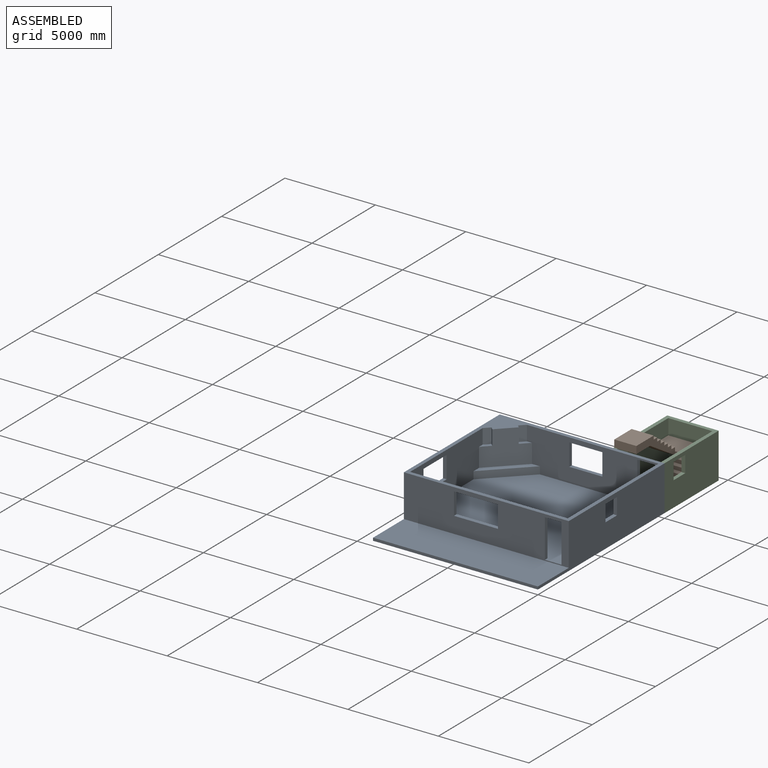
[diagram: assembled view]
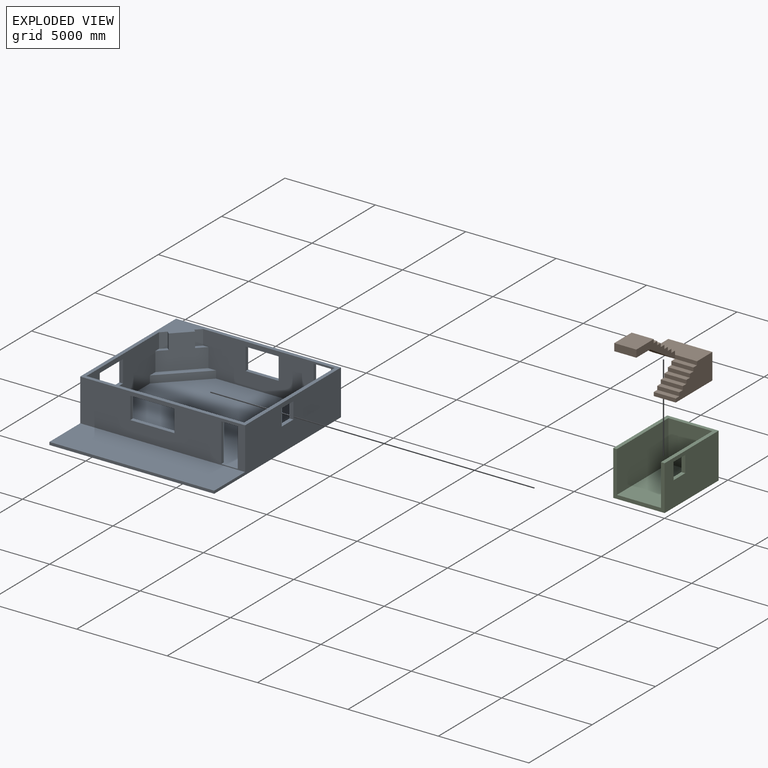
[diagram: exploded view]
GUIDED TOUR — MATED ASSEMBLY (Onshape document 7e3d1e9be7d692a336189ccd, AutoMate assembly 7e3d1e9be7d692a336189ccd_d642fe840273777bba818bfa_d42b345adfe72ecad5a45944_default)

This assembly has 3 components, labeled P0..P2 below (a component is one placed occurrence of a part; the same part can appear more than once), held together by 6 mates. A mate is a constraint between two components; its type names the relative motion it leaves free:
  PLANAR — leaves sliding in the plane through the listed point (normal = the listed direction) and rotation about that normal free.
Axis/direction vectors are unit vectors and 'through' points are millimeter coordinates, both in the assembly's world frame.

MATES
  1. PLANAR "Planar 4": P2 <-> P1, direction (0.000, 0.000, 1.000) through (-1422.40, 12039.60, 0.00) mm
  2. PLANAR "Planar 5": P1 <-> P2, direction (1.000, 0.000, 0.000) through (-203.20, 12967.01, 600.82) mm
  3. PLANAR "Planar 3": P2 <-> P0, direction (1.000, 0.000, 0.000) through (0.00, 12223.67, 991.48) mm
  4. PLANAR "Planar 2": P2 <-> P0, direction (0.000, -1.000, 0.000) through (-1422.40, 10007.60, 665.62) mm
  5. PLANAR "Planar 1": P0 <-> P2, direction (0.000, 0.000, -1.000) through (-4559.30, 5003.80, -203.20) mm
  6. PLANAR "Planar 6": P1 <-> P2, direction (0.000, 1.000, 0.000) through (-203.20, 14071.60, 0.00) mm

ASSEMBLY ORDER
  1. P2 — the base component [order verified]
  2. P1 [order verified]
  3. P0 [order verified]
Order-tag legend:
  [order verified] — this step's position reverses a verified removal order: the component was checked to insert without passing through the ones already placed.

Of the 3 components, 3 carry the full construction recipe — the FeatureScript program that regenerates the part's solid from scratch; the rest are supplied as boundary geometry only.
Each toured component is shown spotlighted twice — in the assembled view, then in the exploded view, where a leader line traces a displaced component back to its assembled socket (saturated green if recipe-attached, orange if geometry-only; every other component desaturated gray) — followed by its recipe or geometry summary and the mates that hold it.
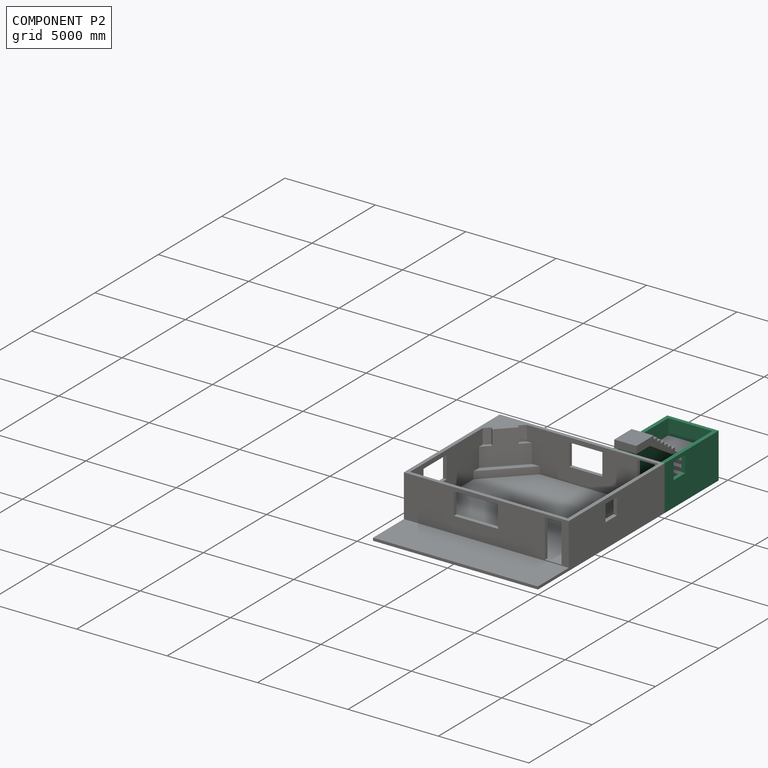
[diagram: component P2 — assembled]
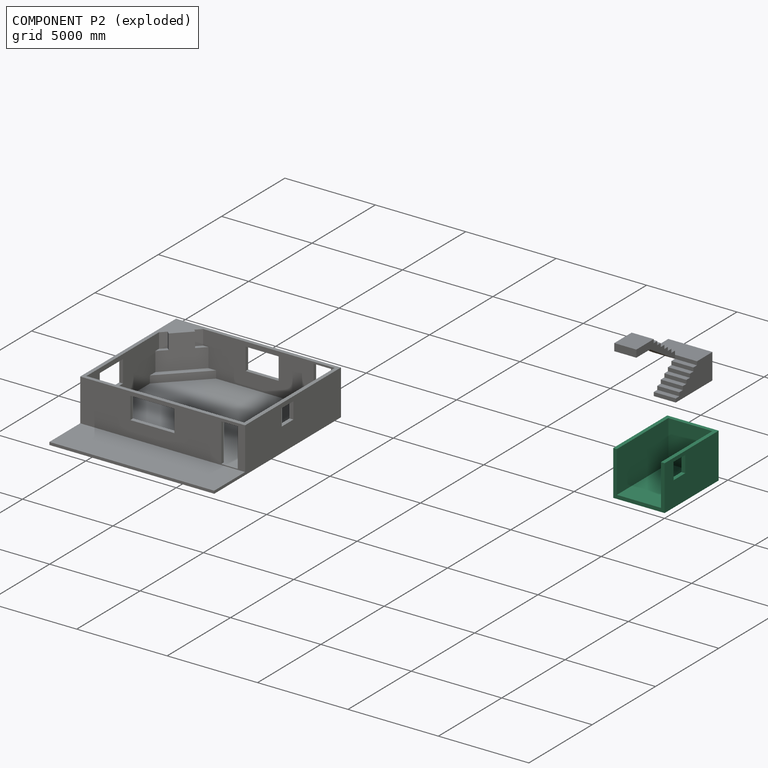
[diagram: component P2 — exploded]
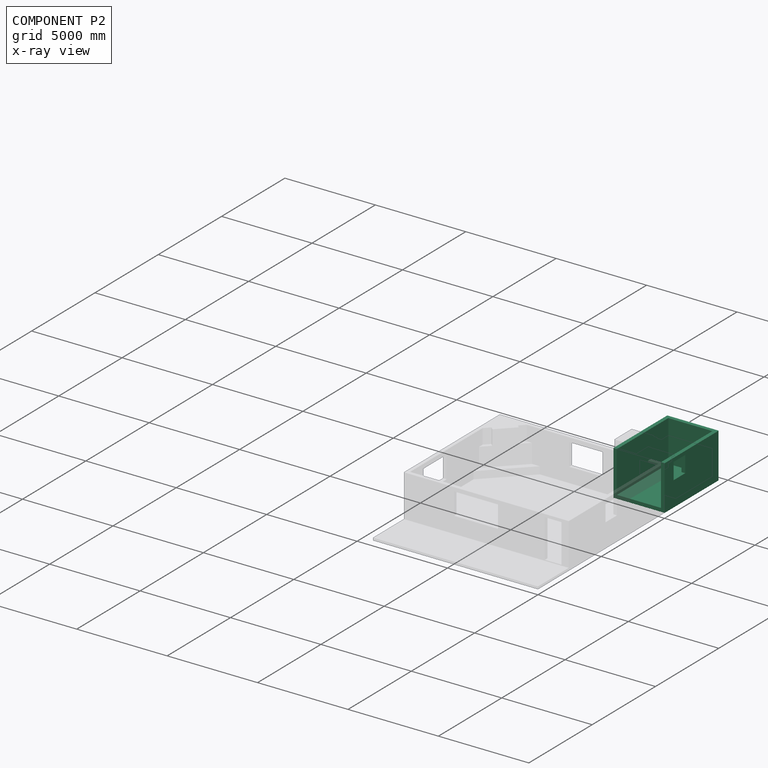
[diagram: component P2 — x-ray view]
COMPONENT P2 — recipe-attached (CADFS 00429497, mesh-verified: the recipe's output STEP matches this component's geometry to below the mesh-comparison resolution (tessellation chordal tolerance ~8.55 mm)).
Held by: PLANAR mate "Planar 4" to P1; PLANAR mate "Planar 5" to P1; PLANAR mate "Planar 3" to P0; PLANAR mate "Planar 2" to P0; PLANAR mate "Planar 1" to P0; PLANAR mate "Planar 6" to P1.
Construction recipe (FeatureScript — the CAD program that rebuilds this solid; sketch coordinates are in the units given by the * unit suffixes, e.g. mm):

FeatureScript 1511;
import(path : "onshape/std/geometry.fs", version : "1511.0");
import(path : "onshape/std/common.fs", version : "1511.0");
const mm = millimeter;
const VERTEX = EntityType.VERTEX;
const EDGE = EntityType.EDGE;
const FACE = EntityType.FACE;
const BODY = EntityType.BODY;
function v(x, y){return vector(x, y);}
function OD(order){return orderDisambiguation(order);}
function OSD(set){return originalSetDisambiguation(set);}
function TD(topology){return topologyDisambiguation(topology);}
function TDD(query){return trueDependencyDisambiguation(query);}
function sQuery(a, b, c) {return sketchEntityQuery(a, b, c);}

annotation { "Feature Type Name" : "Feature", "Feature Type Description" : "" }
export const myFeature = defineFeature(function(context is Context, id is Id, definition is map)
    precondition{}
    {
        {
            var Q0;
            Q0=qCreatedBy(makeId("Top.planeOp"),FACE);
            var sketch = newSketch(context, id + "F0", { "sketchPlane" : qUnion([Q0])});
            skLineSegment(sketch, "E0.bottom", {"start": v(0, 0) * mm, "end": v(4267.2, 0) * mm});
            skLineSegment(sketch, "E0.top", {"start": v(0, 2844.8) * mm, "end": v(4267.2, 2844.8) * mm});
            skLineSegment(sketch, "E0.left", {"start": v(0, 0) * mm, "end": v(0, 2844.8) * mm});
            skLineSegment(sketch, "E0.right", {"start": v(4267.2, 0) * mm, "end": v(4267.2, 2844.8) * mm});
            skSolve(sketch);
        }
        {
            var Q0;
            Q0 = qSketchRegion(id + "F0", true);
            extrude(context, id + "F1", {"entities" : qUnion([Q0]), "depth" : 203.2 * mm});
        }
        {
            var Q0;
            Q0=makeQuery(id+"F1.opExtrude","CAP_FACE",FACE,{"disambiguationData":[OSD([sQuery(id+"F0.wireOp",EDGE,"E0.bottom"),sQuery(id+"F0.wireOp",EDGE,"E0.top"),sQuery(id+"F0.wireOp",EDGE,"E0.left"),sQuery(id+"F0.wireOp",EDGE,"E0.right")])],"isStart":false});
            var sketch = newSketch(context, id + "F2", { "sketchPlane" : qUnion([Q0])});
            skLineSegment(sketch, "E1.0", {"start": v(0, 0) * mm, "end": v(4267.2, 0) * mm});
            skLineSegment(sketch, "E1.1", {"start": v(4267.2, 0) * mm, "end": v(4267.2, 2844.8) * mm});
            skLineSegment(sketch, "E1.2", {"start": v(0, 2844.8) * mm, "end": v(4267.2, 2844.8) * mm});
            skLineSegment(sketch, "E2", {"start": v(0, 2844.8) * mm, "end": v(0, 2641.6) * mm});
            skLineSegment(sketch, "E3", {"start": v(0, 2641.6) * mm, "end": v(4064, 2641.6) * mm});
            skLineSegment(sketch, "E4", {"start": v(4064, 2641.6) * mm, "end": v(4064, 203.2) * mm});
            skLineSegment(sketch, "E5", {"start": v(4064, 203.2) * mm, "end": v(0, 203.2) * mm});
            skLineSegment(sketch, "E6", {"start": v(0, 203.2) * mm, "end": v(0, 0) * mm});
            skSolve(sketch);
        }
        {
            var Q0;
            Q0 = qSketchRegion(id + "F2", true);
            extrude(context, id + "F3", {"entities" : qUnion([Q0]), "operationType" : NewBodyOperationType.ADD, "depth" : 2286 * mm});
        }
        {
            var Q0;
            Q0=makeQuery(id+"F3.boolean.opBoolean","MERGE",FACE,{"derivedFrom":[makeQuery(id+"F1.opExtrude","SWEPT_FACE",FACE,{"disambiguationData":[OSD([sQuery(id+"F0.wireOp",EDGE,"E0.bottom")])]}),makeQuery(id+"F3.opExtrude","SWEPT_FACE",FACE,{"disambiguationData":[OSD([sQuery(id+"F2.wireOp",EDGE,"E1.0")])]})]});
            var sketch = newSketch(context, id + "F4", { "sketchPlane" : qUnion([Q0])});
            skLineSegment(sketch, "E7.bottom", {"start": v(711.2, 2286) * mm, "end": v(1625.6, 2286) * mm});
            skLineSegment(sketch, "E7.top", {"start": v(711.2, 1371.6) * mm, "end": v(1625.6, 1371.6) * mm});
            skLineSegment(sketch, "E7.left", {"start": v(711.2, 2286) * mm, "end": v(711.2, 1371.6) * mm});
            skLineSegment(sketch, "E7.right", {"start": v(1625.6, 2286) * mm, "end": v(1625.6, 1371.6) * mm});
            skSolve(sketch);
        }
        {
            var Q0;
            Q0 = qSketchRegion(id + "F4", true);
            var Q1;
            Q1=makeQuery(id+"F3.opExtrude","SWEPT_FACE",FACE,{"disambiguationData":[OSD([sQuery(id+"F2.wireOp",EDGE,"E5")])]});
            extrude(context, id + "F5", {"entities" : qUnion([Q0]), "operationType" : NewBodyOperationType.REMOVE, "endBound" : BoundingType.UP_TO_SURFACE, "oppositeDirection" : true, "endBoundEntityFace" : qUnion([Q1]), "depth" : 25.4 * mm});
        }
    });
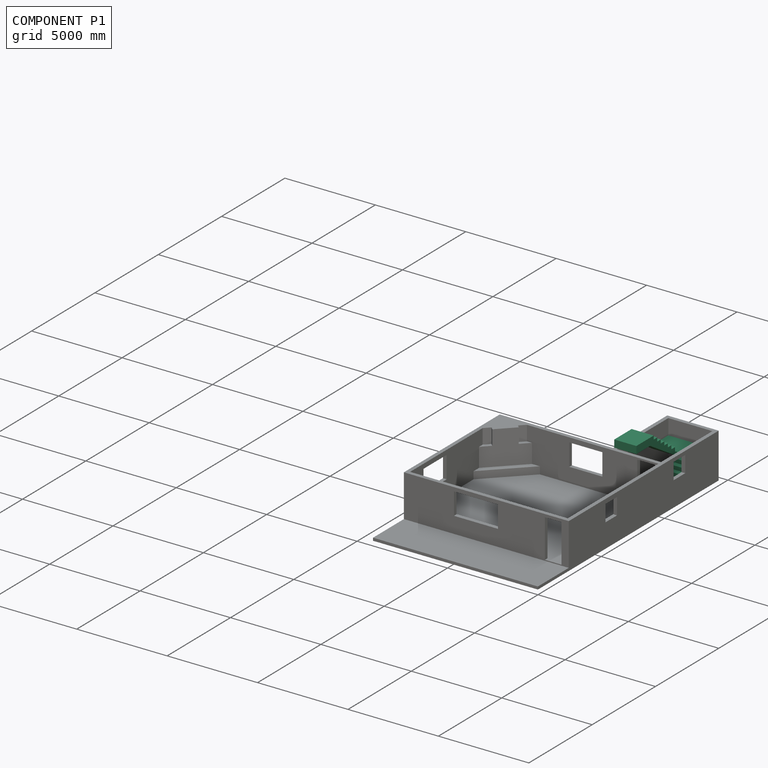
[diagram: component P1 — assembled]
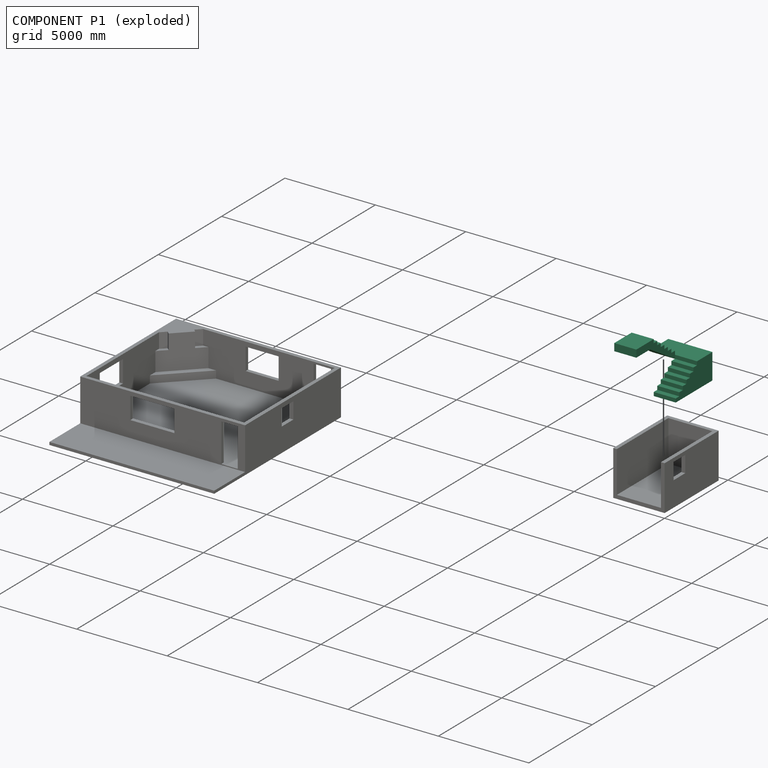
[diagram: component P1 — exploded]
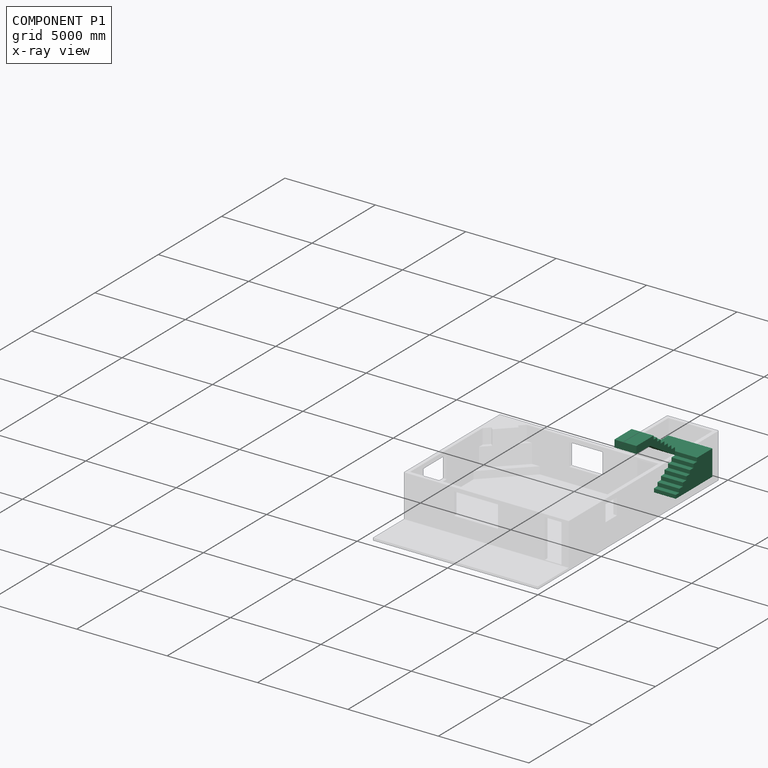
[diagram: component P1 — x-ray view]
COMPONENT P1 — recipe-attached (CADFS 00429496, mesh-verified: the recipe's output STEP matches this component's geometry to below the mesh-comparison resolution (tessellation chordal tolerance ~8.52 mm)).
Held by: PLANAR mate "Planar 4" to P2; PLANAR mate "Planar 5" to P2; PLANAR mate "Planar 6" to P2.
Construction recipe (FeatureScript — the CAD program that rebuilds this solid; sketch coordinates are in the units given by the * unit suffixes, e.g. mm):

FeatureScript 1511;
import(path : "onshape/std/geometry.fs", version : "1511.0");
import(path : "onshape/std/common.fs", version : "1511.0");
const mm = millimeter;
const VERTEX = EntityType.VERTEX;
const EDGE = EntityType.EDGE;
const FACE = EntityType.FACE;
const BODY = EntityType.BODY;
function v(x, y){return vector(x, y);}
function OD(order){return orderDisambiguation(order);}
function OSD(set){return originalSetDisambiguation(set);}
function TD(topology){return topologyDisambiguation(topology);}
function TDD(query){return trueDependencyDisambiguation(query);}
function sQuery(a, b, c) {return sketchEntityQuery(a, b, c);}

annotation { "Feature Type Name" : "Feature", "Feature Type Description" : "" }
export const myFeature = defineFeature(function(context is Context, id is Id, definition is map)
    precondition{}
    {
        {
            var Q0;
            Q0=qCreatedBy(makeId("Right.planeOp"),FACE);
            var sketch = newSketch(context, id + "F0", { "sketchPlane" : qUnion([Q0])});
            skLineSegment(sketch, "E0", {"start": v(0, 0) * mm, "end": v(0, 203.2) * mm});
            skLineSegment(sketch, "E1", {"start": v(0, 203.2) * mm, "end": v(279.4, 203.2) * mm});
            skLineSegment(sketch, "E2", {"start": v(279.4, 203.2) * mm, "end": v(279.4, 406.4) * mm});
            skLineSegment(sketch, "E3", {"start": v(279.4, 406.4) * mm, "end": v(558.8, 406.4) * mm});
            skLineSegment(sketch, "E4", {"start": v(558.8, 406.4) * mm, "end": v(558.8, 609.6) * mm});
            skLineSegment(sketch, "E5", {"start": v(558.8, 609.6) * mm, "end": v(838.2, 609.6) * mm});
            skLineSegment(sketch, "E6", {"start": v(838.2, 609.6) * mm, "end": v(838.2, 812.8) * mm});
            skLineSegment(sketch, "E7", {"start": v(838.2, 812.8) * mm, "end": v(1117.6, 812.8) * mm});
            skLineSegment(sketch, "E8", {"start": v(1117.6, 812.8) * mm, "end": v(1117.6, 1016) * mm});
            skLineSegment(sketch, "E9", {"start": v(1117.6, 1016) * mm, "end": v(1397, 1016) * mm});
            skLineSegment(sketch, "E10", {"start": v(1397, 1016) * mm, "end": v(1397, 1219.2) * mm});
            skLineSegment(sketch, "E11", {"start": v(1397, 1219.2) * mm, "end": v(1676.4, 1219.2) * mm});
            skLineSegment(sketch, "E12", {"start": v(1676.4, 1219.2) * mm, "end": v(1676.4, 1422.4) * mm});
            skLineSegment(sketch, "E13", {"start": v(1676.4, 1422.4) * mm, "end": v(2895.6, 1422.4) * mm});
            skLineSegment(sketch, "E14", {"start": v(2895.6, 1422.4) * mm, "end": v(2895.6, 0) * mm});
            skLineSegment(sketch, "E15", {"start": v(2895.6, 0) * mm, "end": v(0, 0) * mm});
            skSolve(sketch);
        }
        {
            var Q0;
            Q0 = qSketchRegion(id + "F0", true);
            extrude(context, id + "F1", {"entities" : qUnion([Q0]), "oppositeDirection" : true, "depth" : 1219.2 * mm});
        }
        {
            var Q0;
            Q0=makeQuery(id+"F1.opExtrude","CAP_FACE",FACE,{"disambiguationData":[OSD([sQuery(id+"F0.wireOp",EDGE,"E0"),sQuery(id+"F0.wireOp",EDGE,"E1"),sQuery(id+"F0.wireOp",EDGE,"E2"),sQuery(id+"F0.wireOp",EDGE,"E3"),sQuery(id+"F0.wireOp",EDGE,"E4"),sQuery(id+"F0.wireOp",EDGE,"E5"),sQuery(id+"F0.wireOp",EDGE,"E6"),sQuery(id+"F0.wireOp",EDGE,"E7"),sQuery(id+"F0.wireOp",EDGE,"E8"),sQuery(id+"F0.wireOp",EDGE,"E9"),sQuery(id+"F0.wireOp",EDGE,"E10"),sQuery(id+"F0.wireOp",EDGE,"E11"),sQuery(id+"F0.wireOp",EDGE,"E12"),sQuery(id+"F0.wireOp",EDGE,"E13"),sQuery(id+"F0.wireOp",EDGE,"E14"),sQuery(id+"F0.wireOp",EDGE,"E15")])],"isStart":false});
            var sketch = newSketch(context, id + "F2", { "sketchPlane" : qUnion([Q0])});
            skLineSegment(sketch, "E16.bottom", {"start": v(-1676.4, 1422.4) * mm, "end": v(-2895.6, 1422.4) * mm});
            skLineSegment(sketch, "E16.top", {"start": v(-1676.4, 1219.2) * mm, "end": v(-2895.6, 1219.2) * mm});
            skLineSegment(sketch, "E16.left", {"start": v(-1676.4, 1422.4) * mm, "end": v(-1676.4, 1219.2) * mm});
            skLineSegment(sketch, "E16.right", {"start": v(-2895.6, 1422.4) * mm, "end": v(-2895.6, 1219.2) * mm});
            skSolve(sketch);
        }
        {
            var Q0;
            Q0 = qSketchRegion(id + "F2", true);
            extrude(context, id + "F3", {"entities" : qUnion([Q0]), "operationType" : NewBodyOperationType.ADD, "depth" : 1219.2 * mm});
        }
        {
            var Q0;
            Q0=makeQuery(id+"F3.opExtrude","CAP_FACE",FACE,{"disambiguationData":[OSD([sQuery(id+"F2.wireOp",EDGE,"E16.bottom"),sQuery(id+"F2.wireOp",EDGE,"E16.top"),sQuery(id+"F2.wireOp",EDGE,"E16.left"),sQuery(id+"F2.wireOp",EDGE,"E16.right")])],"isStart":false});
            var sketch = newSketch(context, id + "F4", { "sketchPlane" : qUnion([Q0])});
            skLineSegment(sketch, "E17", {"start": v(-1676.4, 1219.2) * mm, "end": v(-1676.4, 1625.6) * mm});
            skLineSegment(sketch, "E18", {"start": v(-1676.4, 1625.6) * mm, "end": v(-1397, 1625.6) * mm});
            skLineSegment(sketch, "E19", {"start": v(-1397, 1625.6) * mm, "end": v(-1397, 1828.8) * mm});
            skLineSegment(sketch, "E20", {"start": v(-1397, 1828.8) * mm, "end": v(-1117.6, 1828.8) * mm});
            skLineSegment(sketch, "E21", {"start": v(-1117.6, 1828.8) * mm, "end": v(-1117.6, 2032) * mm});
            skLineSegment(sketch, "E22", {"start": v(-1117.6, 2032) * mm, "end": v(-838.2, 2032) * mm});
            skLineSegment(sketch, "E23", {"start": v(-838.2, 2032) * mm, "end": v(-838.2, 2235.2) * mm});
            skLineSegment(sketch, "E24", {"start": v(-838.2, 2235.2) * mm, "end": v(-558.8, 2235.2) * mm});
            skLineSegment(sketch, "E25", {"start": v(-558.8, 2235.2) * mm, "end": v(-558.8, 2438.4) * mm});
            skLineSegment(sketch, "E26", {"start": v(-558.8, 2438.4) * mm, "end": v(-279.4, 2438.4) * mm});
            skLineSegment(sketch, "E27", {"start": v(-279.4, 2438.4) * mm, "end": v(-279.4, 2641.6) * mm});
            skLineSegment(sketch, "E28", {"start": v(-279.4, 2641.6) * mm, "end": v(0, 2641.6) * mm});
            skLineSegment(sketch, "E29", {"start": v(0, 2641.6) * mm, "end": v(0, 2844.8) * mm});
            skLineSegment(sketch, "E30", {"start": v(0, 2844.8) * mm, "end": v(279.4, 2844.8) * mm});
            skLineSegment(sketch, "E31", {"start": v(279.4, 2844.8) * mm, "end": v(279.4, 2438.4) * mm});
            skLineSegment(sketch, "E32", {"start": v(279.4, 2438.4) * mm, "end": v(-1676.4, 1219.2) * mm});
            skSolve(sketch);
        }
        {
            var Q0;
            Q0 = qSketchRegion(id + "F4", true);
            var Q1;
            Q1=makeQuery(id+"F1.opExtrude","CAP_FACE",FACE,{"disambiguationData":[OSD([sQuery(id+"F0.wireOp",EDGE,"E0"),sQuery(id+"F0.wireOp",EDGE,"E1"),sQuery(id+"F0.wireOp",EDGE,"E2"),sQuery(id+"F0.wireOp",EDGE,"E3"),sQuery(id+"F0.wireOp",EDGE,"E4"),sQuery(id+"F0.wireOp",EDGE,"E5"),sQuery(id+"F0.wireOp",EDGE,"E6"),sQuery(id+"F0.wireOp",EDGE,"E7"),sQuery(id+"F0.wireOp",EDGE,"E8"),sQuery(id+"F0.wireOp",EDGE,"E9"),sQuery(id+"F0.wireOp",EDGE,"E10"),sQuery(id+"F0.wireOp",EDGE,"E11"),sQuery(id+"F0.wireOp",EDGE,"E12"),sQuery(id+"F0.wireOp",EDGE,"E13"),sQuery(id+"F0.wireOp",EDGE,"E14"),sQuery(id+"F0.wireOp",EDGE,"E15")])],"isStart":false});
            extrude(context, id + "F5", {"entities" : qUnion([Q0]), "operationType" : NewBodyOperationType.ADD, "endBound" : BoundingType.UP_TO_SURFACE, "oppositeDirection" : true, "endBoundEntityFace" : qUnion([Q1]), "depth" : 25.4 * mm});
        }
        {
            var Q0;
            Q0=makeQuery(id+"F5.opExtrude","SWEPT_FACE",FACE,{"disambiguationData":[OSD([sQuery(id+"F4.wireOp",EDGE,"E31")])]});
            var sketch = newSketch(context, id + "F6", { "sketchPlane" : qUnion([Q0])});
            skLineSegment(sketch, "E33.0", {"start": v(-1219.2, 2844.8) * mm, "end": v(-2438.4, 2844.8) * mm});
            skLineSegment(sketch, "E33.1", {"start": v(-2438.4, 2844.8) * mm, "end": v(-2438.4, 2438.4) * mm});
            skLineSegment(sketch, "E33.2", {"start": v(-1219.2, 2438.4) * mm, "end": v(-2438.4, 2438.4) * mm});
            skLineSegment(sketch, "E33.3", {"start": v(-1219.2, 2844.8) * mm, "end": v(-1219.2, 2438.4) * mm});
            skSolve(sketch);
        }
        {
            var Q0;
            Q0 = qSketchRegion(id + "F6", true);
            extrude(context, id + "F7", {"entities" : qUnion([Q0]), "operationType" : NewBodyOperationType.ADD, "depth" : 1092.2 * mm});
        }
    });
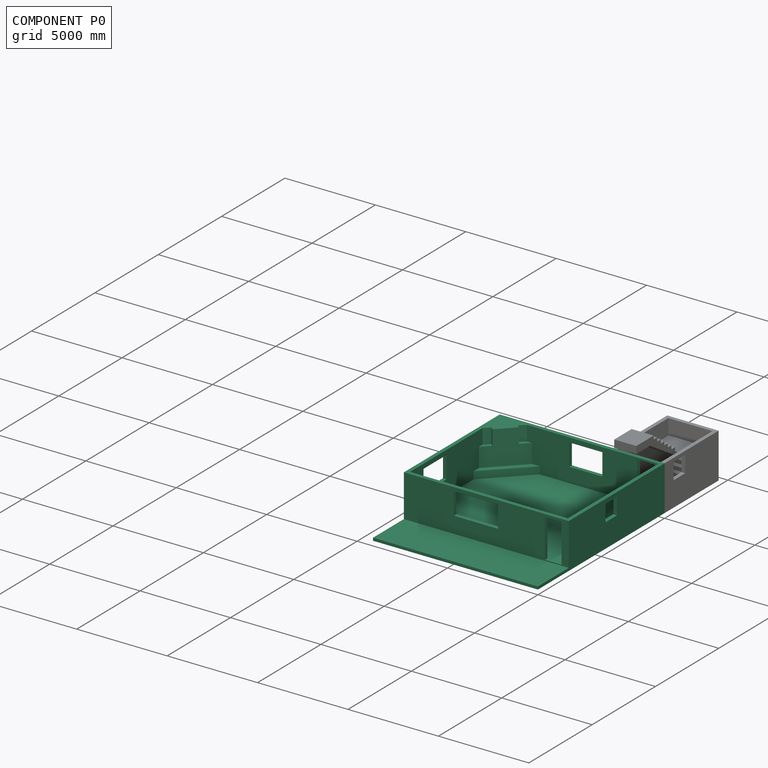
[diagram: component P0 — assembled]
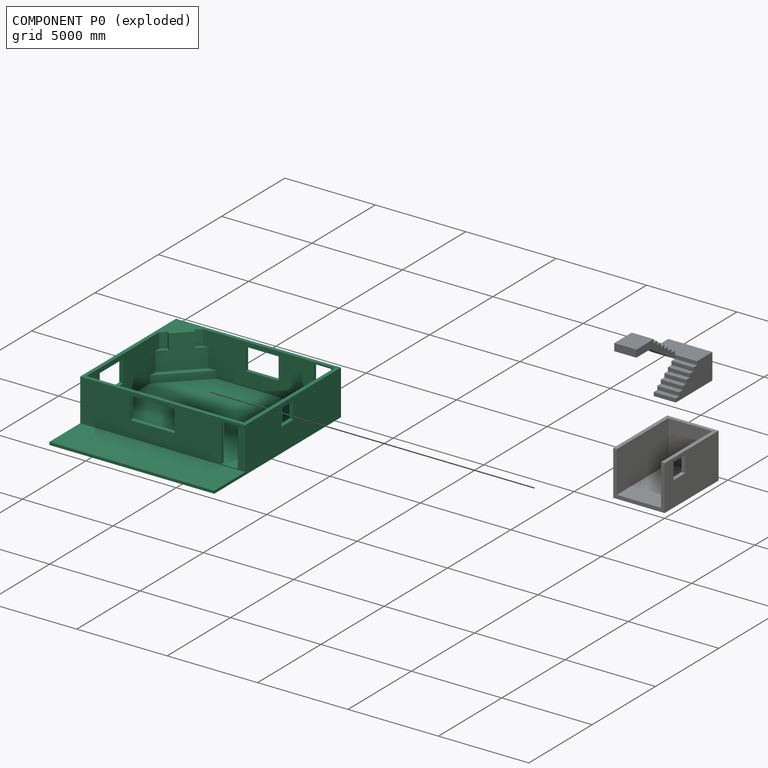
[diagram: component P0 — exploded]
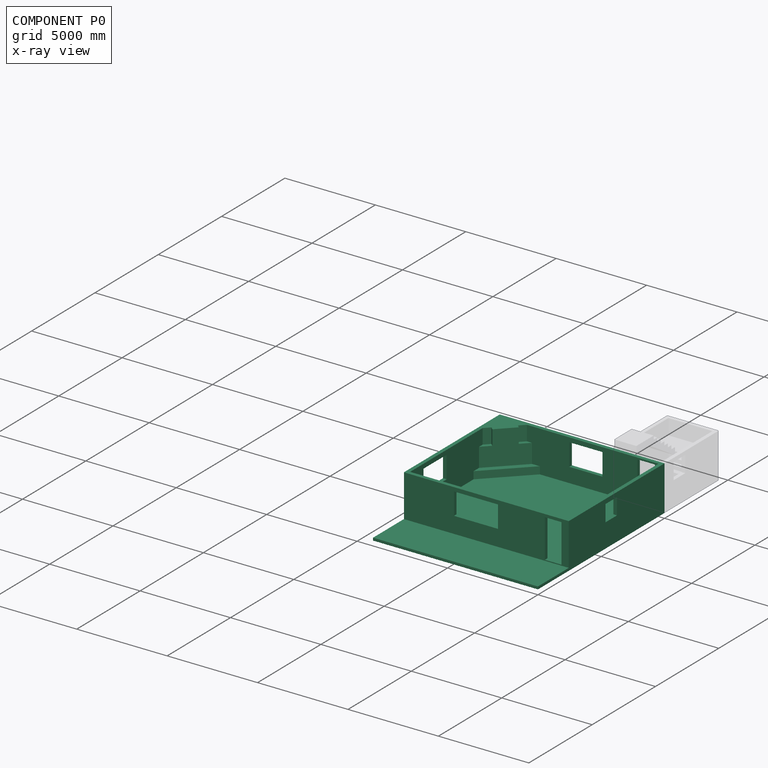
[diagram: component P0 — x-ray view]
COMPONENT P0 — recipe-attached (CADFS 00429498, mesh-verified: the recipe's output STEP matches this component's geometry to below the mesh-comparison resolution (tessellation chordal tolerance ~20.6 mm)).
Held by: PLANAR mate "Planar 3" to P2; PLANAR mate "Planar 2" to P2; PLANAR mate "Planar 1" to P2.
Construction recipe (FeatureScript — the CAD program that rebuilds this solid; sketch coordinates are in the units given by the * unit suffixes, e.g. mm):

FeatureScript 1511;
import(path : "onshape/std/geometry.fs", version : "1511.0");
import(path : "onshape/std/common.fs", version : "1511.0");
const mm = millimeter;
const VERTEX = EntityType.VERTEX;
const EDGE = EntityType.EDGE;
const FACE = EntityType.FACE;
const BODY = EntityType.BODY;
function v(x, y){return vector(x, y);}
function OD(order){return orderDisambiguation(order);}
function OSD(set){return originalSetDisambiguation(set);}
function TD(topology){return topologyDisambiguation(topology);}
function TDD(query){return trueDependencyDisambiguation(query);}
function sQuery(a, b, c) {return sketchEntityQuery(a, b, c);}

annotation { "Feature Type Name" : "Feature", "Feature Type Description" : "" }
export const myFeature = defineFeature(function(context is Context, id is Id, definition is map)
    precondition{}
    {
        {
            var Q0;
            Q0=qCreatedBy(makeId("Top.planeOp"),FACE);
            var sketch = newSketch(context, id + "F0", { "sketchPlane" : qUnion([Q0])});
            skLineSegment(sketch, "E0.bottom", {"start": v(0, 0) * mm, "end": v(-9118.6, 0) * mm});
            skLineSegment(sketch, "E0.top", {"start": v(0, 10007.6) * mm, "end": v(-9118.6, 10007.6) * mm});
            skLineSegment(sketch, "E0.left", {"start": v(0, 0) * mm, "end": v(0, 10007.6) * mm});
            skLineSegment(sketch, "E0.right", {"start": v(-9118.6, 0) * mm, "end": v(-9118.6, 10007.6) * mm});
            skSolve(sketch);
        }
        {
            var Q0;
            Q0 = qSketchRegion(id + "F0", true);
            extrude(context, id + "F1", {"entities" : qUnion([Q0]), "oppositeDirection" : true, "depth" : 203.2 * mm});
        }
        {
            var Q0;
            Q0=makeQuery(id+"F1.opExtrude","CAP_FACE",FACE,{"disambiguationData":[OSD([sQuery(id+"F0.wireOp",EDGE,"E0.bottom"),sQuery(id+"F0.wireOp",EDGE,"E0.top"),sQuery(id+"F0.wireOp",EDGE,"E0.left"),sQuery(id+"F0.wireOp",EDGE,"E0.right")])],"isStart":true});
            var sketch = newSketch(context, id + "F2", { "sketchPlane" : qUnion([Q0])});
            skLineSegment(sketch, "E1.bottom", {"start": v(-9118.6, 0) * mm, "end": v(0, 0) * mm});
            skLineSegment(sketch, "E1.top", {"start": v(-9118.6, 2438.4) * mm, "end": v(0, 2438.4) * mm});
            skLineSegment(sketch, "E1.left", {"start": v(-9118.6, 0) * mm, "end": v(-9118.6, 2438.4) * mm});
            skLineSegment(sketch, "E1.right", {"start": v(0, 0) * mm, "end": v(0, 2438.4) * mm});
            skSolve(sketch);
        }
        {
            var Q0;
            Q0 = qSketchRegion(id + "F2", true);
            extrude(context, id + "F3", {"entities" : qUnion([Q0]), "operationType" : NewBodyOperationType.REMOVE, "oppositeDirection" : true, "depth" : 50.8 * mm});
        }
        {
            var Q0;
            Q0=makeQuery(id+"F1.opExtrude","CAP_FACE",FACE,{"disambiguationData":[OSD([sQuery(id+"F0.wireOp",EDGE,"E0.bottom"),sQuery(id+"F0.wireOp",EDGE,"E0.top"),sQuery(id+"F0.wireOp",EDGE,"E0.left"),sQuery(id+"F0.wireOp",EDGE,"E0.right")])],"isStart":true});
            var sketch = newSketch(context, id + "F4", { "sketchPlane" : qUnion([Q0])});
            skLineSegment(sketch, "E2.bottom", {"start": v(-9118.6, 2438.4) * mm, "end": v(0, 2438.4) * mm});
            skLineSegment(sketch, "E2.top", {"start": v(-9118.6, 10007.6) * mm, "end": v(0, 10007.6) * mm});
            skLineSegment(sketch, "E2.left", {"start": v(-9118.6, 2438.4) * mm, "end": v(-9118.6, 10007.6) * mm});
            skLineSegment(sketch, "E2.right", {"start": v(0, 2438.4) * mm, "end": v(0, 10007.6) * mm});
            skLineSegment(sketch, "E3.bottom", {"start": v(-8915.4, 2641.6) * mm, "end": v(-203.2, 2641.6) * mm});
            skLineSegment(sketch, "E3.top", {"start": v(-8915.4, 9804.4) * mm, "end": v(-203.2, 9804.4) * mm});
            skLineSegment(sketch, "E3.left", {"start": v(-8915.4, 2641.6) * mm, "end": v(-8915.4, 9804.4) * mm});
            skLineSegment(sketch, "E3.right", {"start": v(-203.2, 2641.6) * mm, "end": v(-203.2, 9804.4) * mm});
            skSolve(sketch);
        }
        {
            var Q0;
            Q0 = qSketchRegion(id + "F4", true);
            extrude(context, id + "F5", {"entities" : qUnion([Q0]), "operationType" : NewBodyOperationType.ADD, "depth" : 2286 * mm});
        }
        {
            var Q0;
            Q0=makeQuery(id+"F5.boolean.opBoolean","MERGE",FACE,{"derivedFrom":[makeQuery(id+"F3.boolean.opBoolean","COPY",FACE,{"derivedFrom":makeQuery(id+"F3.opExtrude","SWEPT_FACE",FACE,{"disambiguationData":[OSD([sQuery(id+"F2.wireOp",EDGE,"E1.top")])]})}),makeQuery(id+"F5.opExtrude","SWEPT_FACE",FACE,{"disambiguationData":[OSD([sQuery(id+"F4.wireOp",EDGE,"E2.bottom")])]})]});
            var sketch = newSketch(context, id + "F6", { "sketchPlane" : qUnion([Q0])});
            skLineSegment(sketch, "E4.bottom", {"start": v(-406.4, 0) * mm, "end": v(-1320.8, 0) * mm});
            skLineSegment(sketch, "E4.top", {"start": v(-406.4, 2127.25) * mm, "end": v(-1320.8, 2127.25) * mm});
            skLineSegment(sketch, "E4.left", {"start": v(-406.4, 0) * mm, "end": v(-406.4, 2127.25) * mm});
            skLineSegment(sketch, "E4.right", {"start": v(-1320.8, 0) * mm, "end": v(-1320.8, 2127.25) * mm});
            skLineSegment(sketch, "E5.bottom", {"start": v(-6350, 2070.1) * mm, "end": v(-3911.6, 2070.1) * mm});
            skLineSegment(sketch, "E5.top", {"start": v(-6350, 850.9) * mm, "end": v(-3911.6, 850.9) * mm});
            skLineSegment(sketch, "E5.left", {"start": v(-6350, 2070.1) * mm, "end": v(-6350, 850.9) * mm});
            skLineSegment(sketch, "E5.right", {"start": v(-3911.6, 2070.1) * mm, "end": v(-3911.6, 850.9) * mm});
            skSolve(sketch);
        }
        {
            var Q0;
            Q0 = qSketchRegion(id + "F6", true);
            var Q1;
            Q1=makeQuery(id+"F5.opExtrude","SWEPT_FACE",FACE,{"disambiguationData":[OSD([sQuery(id+"F4.wireOp",EDGE,"E3.bottom")])]});
            extrude(context, id + "F7", {"entities" : qUnion([Q0]), "operationType" : NewBodyOperationType.REMOVE, "endBound" : BoundingType.UP_TO_SURFACE, "oppositeDirection" : true, "endBoundEntityFace" : qUnion([Q1]), "depth" : 25.4 * mm});
        }
        {
            var Q0;
            Q0=makeQuery(id+"F5.boolean.opBoolean","MERGE",FACE,{"derivedFrom":[makeQuery(id+"F1.opExtrude","SWEPT_FACE",FACE,{"disambiguationData":[OSD([sQuery(id+"F0.wireOp",EDGE,"E0.left")])]}),makeQuery(id+"F5.opExtrude","SWEPT_FACE",FACE,{"disambiguationData":[OSD([sQuery(id+"F4.wireOp",EDGE,"E2.right")])]})]});
            var sketch = newSketch(context, id + "F8", { "sketchPlane" : qUnion([Q0])});
            skLineSegment(sketch, "E6.bottom", {"start": v(5334, 1117.6) * mm, "end": v(6248.4, 1117.6) * mm});
            skLineSegment(sketch, "E6.top", {"start": v(5334, 2032) * mm, "end": v(6248.4, 2032) * mm});
            skLineSegment(sketch, "E6.left", {"start": v(5334, 1117.6) * mm, "end": v(5334, 2032) * mm});
            skLineSegment(sketch, "E6.right", {"start": v(6248.4, 1117.6) * mm, "end": v(6248.4, 2032) * mm});
            skSolve(sketch);
        }
        {
            var Q0;
            Q0 = qSketchRegion(id + "F8", true);
            var Q1;
            Q1=makeQuery(id+"F5.opExtrude","SWEPT_FACE",FACE,{"disambiguationData":[OSD([sQuery(id+"F4.wireOp",EDGE,"E3.right")])]});
            extrude(context, id + "F9", {"entities" : qUnion([Q0]), "operationType" : NewBodyOperationType.REMOVE, "endBound" : BoundingType.UP_TO_SURFACE, "oppositeDirection" : true, "endBoundEntityFace" : qUnion([Q1]), "depth" : 25.4 * mm});
        }
        {
            var Q0;
            Q0=makeQuery(id+"F5.boolean.opBoolean","MERGE",FACE,{"derivedFrom":[makeQuery(id+"F1.opExtrude","SWEPT_FACE",FACE,{"disambiguationData":[OSD([sQuery(id+"F0.wireOp",EDGE,"E0.top")])]}),makeQuery(id+"F5.opExtrude","SWEPT_FACE",FACE,{"disambiguationData":[OSD([sQuery(id+"F4.wireOp",EDGE,"E2.top")])]})]});
            var sketch = newSketch(context, id + "F10", { "sketchPlane" : qUnion([Q0])});
            skLineSegment(sketch, "E7.bottom", {"start": v(3302, 812.8) * mm, "end": v(5130.8, 812.8) * mm});
            skLineSegment(sketch, "E7.top", {"start": v(3302, 2032) * mm, "end": v(5130.8, 2032) * mm});
            skLineSegment(sketch, "E7.left", {"start": v(3302, 812.8) * mm, "end": v(3302, 2032) * mm});
            skLineSegment(sketch, "E7.right", {"start": v(5130.8, 812.8) * mm, "end": v(5130.8, 2032) * mm});
            skSolve(sketch);
        }
        {
            var Q0;
            Q0 = qSketchRegion(id + "F10", true);
            var Q1;
            Q1=makeQuery(id+"F5.opExtrude","SWEPT_FACE",FACE,{"disambiguationData":[OSD([sQuery(id+"F4.wireOp",EDGE,"E3.top")])]});
            extrude(context, id + "F11", {"entities" : qUnion([Q0]), "operationType" : NewBodyOperationType.REMOVE, "endBound" : BoundingType.UP_TO_SURFACE, "oppositeDirection" : true, "endBoundEntityFace" : qUnion([Q1]), "depth" : 25.4 * mm});
        }
        {
            var Q0;
            Q0=makeQuery(id+"F5.boolean.opBoolean","MERGE",FACE,{"derivedFrom":[makeQuery(id+"F1.opExtrude","SWEPT_FACE",FACE,{"disambiguationData":[OSD([sQuery(id+"F0.wireOp",EDGE,"E0.top")])]}),makeQuery(id+"F5.opExtrude","SWEPT_FACE",FACE,{"disambiguationData":[OSD([sQuery(id+"F4.wireOp",EDGE,"E2.top")])]})]});
            var sketch = newSketch(context, id + "F12", { "sketchPlane" : qUnion([Q0])});
            skLineSegment(sketch, "E8.bottom", {"start": v(406.4, 0) * mm, "end": v(1371.6, 0) * mm});
            skLineSegment(sketch, "E8.top", {"start": v(406.4, 2184.4) * mm, "end": v(1371.6, 2184.4) * mm});
            skLineSegment(sketch, "E8.left", {"start": v(406.4, 0) * mm, "end": v(406.4, 2184.4) * mm});
            skLineSegment(sketch, "E8.right", {"start": v(1371.6, 0) * mm, "end": v(1371.6, 2184.4) * mm});
            skSolve(sketch);
        }
        {
            var Q0;
            Q0 = qSketchRegion(id + "F12", true);
            extrude(context, id + "F13", {"entities" : qUnion([Q0]), "operationType" : NewBodyOperationType.REMOVE, "oppositeDirection" : true, "depth" : 25.4 * mm});
        }
        {
            var Q0;
            Q0=makeQuery(id+"F5.boolean.opBoolean","MERGE",FACE,{"derivedFrom":[makeQuery(id+"F1.opExtrude","SWEPT_FACE",FACE,{"disambiguationData":[OSD([sQuery(id+"F0.wireOp",EDGE,"E0.right")])]}),makeQuery(id+"F5.opExtrude","SWEPT_FACE",FACE,{"disambiguationData":[OSD([sQuery(id+"F4.wireOp",EDGE,"E2.left")])]})]});
            var sketch = newSketch(context, id + "F14", { "sketchPlane" : qUnion([Q0])});
            skLineSegment(sketch, "E9.bottom", {"start": v(-5524.5, 2032) * mm, "end": v(-3695.7, 2032) * mm});
            skLineSegment(sketch, "E9.top", {"start": v(-5524.5, 812.8) * mm, "end": v(-3695.7, 812.8) * mm});
            skLineSegment(sketch, "E9.left", {"start": v(-5524.5, 2032) * mm, "end": v(-5524.5, 812.8) * mm});
            skLineSegment(sketch, "E9.right", {"start": v(-3695.7, 2032) * mm, "end": v(-3695.7, 812.8) * mm});
            skSolve(sketch);
        }
        {
            var Q0;
            Q0 = qSketchRegion(id + "F14", true);
            var Q1;
            Q1=makeQuery(id+"F5.opExtrude","SWEPT_FACE",FACE,{"disambiguationData":[OSD([sQuery(id+"F4.wireOp",EDGE,"E3.left")])]});
            extrude(context, id + "F15", {"entities" : qUnion([Q0]), "operationType" : NewBodyOperationType.REMOVE, "endBound" : BoundingType.UP_TO_SURFACE, "oppositeDirection" : true, "endBoundEntityFace" : qUnion([Q1]), "depth" : 25.4 * mm});
        }
        {
            var Q0;
            Q0=makeQuery(id+"F7.boolean.opBoolean","MERGE",FACE,{"derivedFrom":[makeQuery(id+"F1.opExtrude","CAP_FACE",FACE,{"disambiguationData":[OSD([sQuery(id+"F0.wireOp",EDGE,"E0.bottom"),sQuery(id+"F0.wireOp",EDGE,"E0.top"),sQuery(id+"F0.wireOp",EDGE,"E0.left"),sQuery(id+"F0.wireOp",EDGE,"E0.right")])],"isStart":true}),makeQuery(id+"F7.opExtrude","SWEPT_FACE",FACE,{"disambiguationData":[OSD([sQuery(id+"F6.wireOp",EDGE,"E4.bottom")])]})]});
            var sketch = newSketch(context, id + "F16", { "sketchPlane" : qUnion([Q0])});
            skLineSegment(sketch, "E10", {"start": v(-8915.4, 9804.4) * mm, "end": v(-8915.4, 7649.14) * mm});
            skLineSegment(sketch, "E11", {"start": v(-8915.4, 7649.14) * mm, "end": v(-6760.14, 9804.4) * mm});
            skLineSegment(sketch, "E12", {"start": v(-6760.14, 9804.4) * mm, "end": v(-8915.4, 9804.4) * mm});
            skSolve(sketch);
        }
        {
            var Q0;
            Q0 = qSketchRegion(id + "F16", true);
            extrude(context, id + "F17", {"entities" : qUnion([Q0]), "operationType" : NewBodyOperationType.ADD, "depth" : 406.4 * mm});
        }
        {
            var Q0;
            Q0=makeQuery(id+"F17.opExtrude","CAP_FACE",FACE,{"disambiguationData":[OSD([sQuery(id+"F16.wireOp",EDGE,"E10"),sQuery(id+"F16.wireOp",EDGE,"E11"),sQuery(id+"F16.wireOp",EDGE,"E12")])],"isStart":false});
            var sketch = newSketch(context, id + "F18", { "sketchPlane" : qUnion([Q0])});
            skLineSegment(sketch, "E13", {"start": v(-8915.4, 8080.2) * mm, "end": v(-7191.2, 9804.4) * mm});
            skLineSegment(sketch, "E14", {"start": v(-7191.2, 9804.4) * mm, "end": v(-8915.4, 9804.4) * mm});
            skLineSegment(sketch, "E15", {"start": v(-8915.4, 9804.4) * mm, "end": v(-8915.4, 8080.2) * mm});
            skSolve(sketch);
        }
        {
            var Q0;
            Q0 = qSketchRegion(id + "F18", true);
            var Q1;
            Q1=makeQuery(id+"F5.opExtrude","CAP_FACE",FACE,{"disambiguationData":[OSD([sQuery(id+"F4.wireOp",EDGE,"E2.bottom"),sQuery(id+"F4.wireOp",EDGE,"E2.top"),sQuery(id+"F4.wireOp",EDGE,"E2.left"),sQuery(id+"F4.wireOp",EDGE,"E2.right"),sQuery(id+"F4.wireOp",EDGE,"E3.bottom"),sQuery(id+"F4.wireOp",EDGE,"E3.top"),sQuery(id+"F4.wireOp",EDGE,"E3.left"),sQuery(id+"F4.wireOp",EDGE,"E3.right")])],"isStart":false});
            extrude(context, id + "F19", {"entities" : qUnion([Q0]), "operationType" : NewBodyOperationType.ADD, "endBound" : BoundingType.UP_TO_SURFACE, "endBoundEntityFace" : qUnion([Q1]), "depth" : 25.4 * mm});
        }
        {
            var Q0;
            {var subQ0=sQuery(id+"F4.wireOp",EDGE,"E3.right");var subQ1=sQuery(id+"F4.wireOp",EDGE,"E3.left");var subQ2=sQuery(id+"F4.wireOp",EDGE,"E3.top");var subQ3=sQuery(id+"F4.wireOp",EDGE,"E3.bottom");var subQ4=sQuery(id+"F4.wireOp",EDGE,"E2.right");var subQ5=sQuery(id+"F4.wireOp",EDGE,"E2.left");var subQ6=sQuery(id+"F4.wireOp",EDGE,"E2.top");var subQ7=sQuery(id+"F4.wireOp",EDGE,"E2.bottom");Q0=makeQuery(id+"F19.boolean.opBoolean","MERGE",FACE,{"derivedFrom":[makeQuery(id+"F5.opExtrude","CAP_FACE",FACE,{"disambiguationData":[OSD([subQ7,subQ6,subQ5,subQ4,subQ3,subQ2,subQ1,subQ0])],"isStart":false}),makeQuery(id+"F19.opExtrude","CAP_FACE",FACE,{"disambiguationData":[OSD([subQ7,subQ6,subQ5,subQ4,subQ3,subQ2,subQ1,subQ0])],"isStart":false})]});}
            var sketch = newSketch(context, id + "F20", { "sketchPlane" : qUnion([Q0])});
            skLineSegment(sketch, "E16", {"start": v(-8484.35, 8511.24) * mm, "end": v(-8915.4, 8080.2) * mm});
            skLineSegment(sketch, "E17", {"start": v(-7622.24, 9373.35) * mm, "end": v(-7191.2, 9804.4) * mm});
            skLineSegment(sketch, "E18", {"start": v(-8915.4, 8080.2) * mm, "end": v(-8915.4, 8367.56) * mm});
            skLineSegment(sketch, "E19", {"start": v(-8484.35, 8511.24) * mm, "end": v(-8628.03, 8654.93) * mm});
            skLineSegment(sketch, "E20", {"start": v(-7622.24, 9373.35) * mm, "end": v(-7765.93, 9517.03) * mm});
            skLineSegment(sketch, "E21", {"start": v(-7191.2, 9804.4) * mm, "end": v(-7478.56, 9804.4) * mm});
            skLineSegment(sketch, "E22", {"start": v(-8628.03, 8654.93) * mm, "end": v(-8915.4, 8367.56) * mm});
            skLineSegment(sketch, "E23", {"start": v(-7765.93, 9517.03) * mm, "end": v(-7478.56, 9804.4) * mm});
            skPoint(sketch, "E24.orphan", {"position": v(-7765.93, 9804.4) * mm});
            skSolve(sketch);
        }
        {
            var Q0;
            Q0 = qSketchRegion(id + "F20", true);
            extrude(context, id + "F21", {"entities" : qUnion([Q0]), "operationType" : NewBodyOperationType.REMOVE, "oppositeDirection" : true, "depth" : 825.5 * mm});
        }
        {
            var Q0;
            Q0=makeQuery(id+"F19.opExtrude","SWEPT_FACE",FACE,{"disambiguationData":[OSD([sQuery(id+"F18.wireOp",EDGE,"E13")])]});
            var sketch = newSketch(context, id + "F22", { "sketchPlane" : qUnion([Q0])});
            skLineSegment(sketch, "E25.bottom", {"start": v(222.22, 406.4) * mm, "end": v(1035.02, 406.4) * mm});
            skLineSegment(sketch, "E25.top", {"start": v(222.22, 1219.2) * mm, "end": v(1035.02, 1219.2) * mm});
            skLineSegment(sketch, "E25.left", {"start": v(222.22, 406.4) * mm, "end": v(222.22, 1219.2) * mm});
            skLineSegment(sketch, "E25.right", {"start": v(1035.02, 406.4) * mm, "end": v(1035.02, 1219.2) * mm});
            skSolve(sketch);
        }
        {
            var Q0;
            Q0=makeQuery(id+"F5.boolean.opBoolean","MERGE",FACE,{"derivedFrom":[makeQuery(id+"F1.opExtrude","SWEPT_FACE",FACE,{"disambiguationData":[OSD([sQuery(id+"F0.wireOp",EDGE,"E0.top")])]}),makeQuery(id+"F5.opExtrude","SWEPT_FACE",FACE,{"disambiguationData":[OSD([sQuery(id+"F4.wireOp",EDGE,"E2.top")])]})]});
            var sketch = newSketch(context, id + "F23", { "sketchPlane" : qUnion([Q0])});
            skLineSegment(sketch, "E26.bottom", {"start": v(406.4, 2184.4) * mm, "end": v(1371.6, 2184.4) * mm});
            skLineSegment(sketch, "E26.top", {"start": v(406.4, 0) * mm, "end": v(1371.6, 0) * mm});
            skLineSegment(sketch, "E26.left", {"start": v(406.4, 2184.4) * mm, "end": v(406.4, 0) * mm});
            skLineSegment(sketch, "E26.right", {"start": v(1371.6, 2184.4) * mm, "end": v(1371.6, 0) * mm});
            skSolve(sketch);
        }
        {
            var Q0;
            Q0 = qSketchRegion(id + "F23", true);
            var Q1;
            Q1=makeQuery(id+"F21.boolean.opBoolean","MERGE",FACE,{"derivedFrom":[makeQuery(id+"F5.opExtrude","SWEPT_FACE",FACE,{"disambiguationData":[OSD([sQuery(id+"F4.wireOp",EDGE,"E3.top")])]}),makeQuery(id+"F21.opExtrude","SWEPT_FACE",FACE,{"disambiguationData":[OSD([sQuery(id+"F20.wireOp",EDGE,"E21")])]})]});
            extrude(context, id + "F24", {"entities" : qUnion([Q0]), "operationType" : NewBodyOperationType.REMOVE, "endBound" : BoundingType.UP_TO_SURFACE, "oppositeDirection" : true, "endBoundEntityFace" : qUnion([Q1]), "depth" : 25.4 * mm});
        }
    });
PROVENANCE & LICENSES
Assembly (occurrences, transforms, mates, per-part STEP geometry): AutoMate dataset, Zenodo record 7776208, CC0.
Construction recipes: CADFS (HuggingFace VladPyatov/CADFS, CC-BY-4.0, layered over the ABC dataset), FeatureScript reconstruction programs keyed by ABC model id.
Join: ABC meta listings map ABC model id -> Onshape documentId; within a shared document, parts are matched by geometric signature (bounding-box dims + volume at 0.1% relative tolerance, exact B-rep face/solid counts).
Verification: 3 of this assembly's 3 components carry a recipe attachment, and every attachment is mesh-verified: the CADFS STEP and the AutoMate member STEP were compared as meshes in their shared local frame (symmetric sampled-point-to-mesh distance); worst across the 3 attachments: below the mesh-comparison resolution (tessellation chordal tolerance ~20.6 mm) on a 13766 mm part.
Renders: orthographic iso camera (az 35 / el 25); the floor grid conveys scale (grid pitch printed in each image; no ruler). In the exploded view each component is displaced by its stored offset vector: the offsets alone carry the explosion direction (mate normal/axis signs are not orientation cues and do not encode it), and separation distances are assigned per mate-chain, not proportionally to assembly-order depth.
